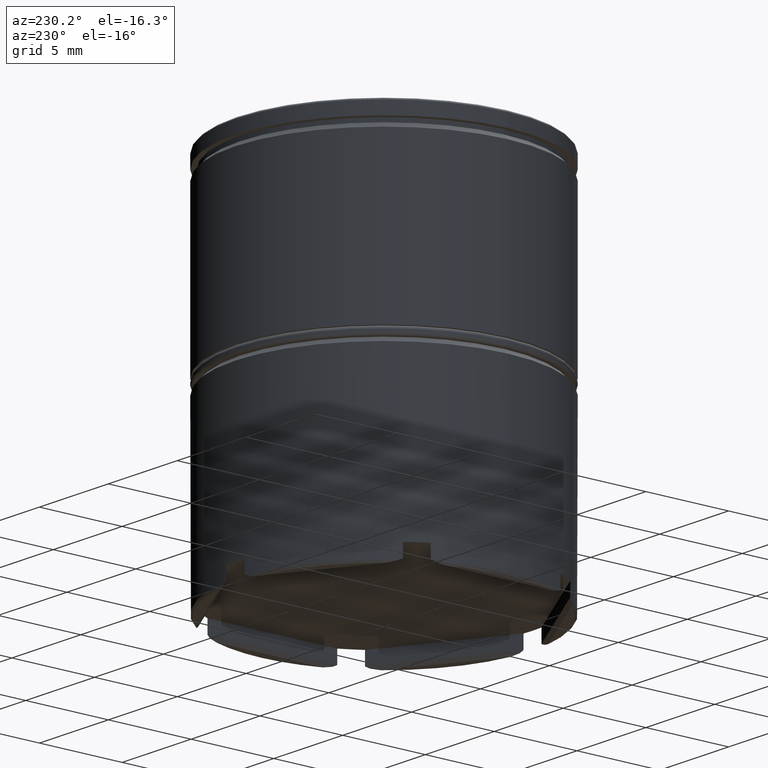
[diagram: clean part render]
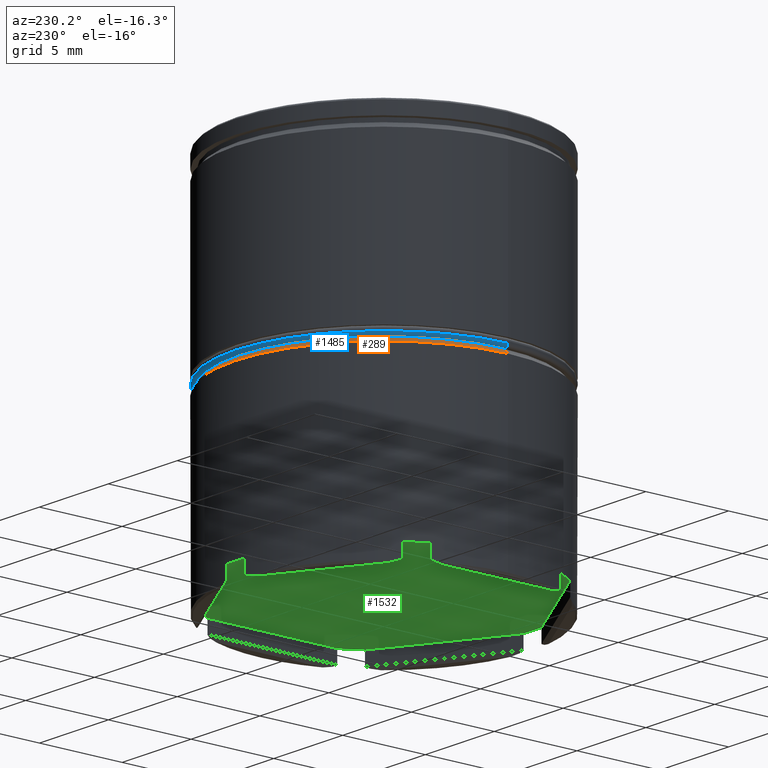
[diagram: same view with three faces highlighted in distinct colors, each labeled with its STEP entity id]
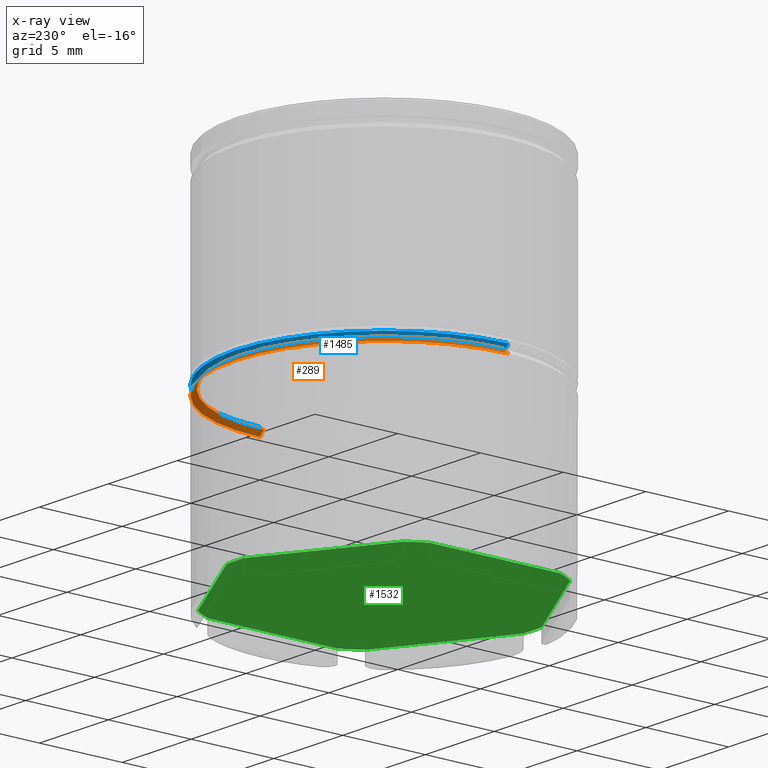
[diagram: x-ray of the same camera — body ghosted, the three highlighted faces saturated]
A machine part, auxiliary view with three faces highlighted in distinct colors.
The next image is the same camera in x-ray (body ghosted, the three faces saturated) — at least one of them is partly hidden behind the body in this view.
Their STEP definitions:

[orange] entity #289 — the highlighted conical surface has half-angle 45 deg.
#26 = VERTEX_POINT ( 'NONE', #1267 ) ;
#53 = DIRECTION ( 'NONE',  ( -0.7071067811865392461, 0.000000000000000000, -0.7071067811865556774 ) ) ;
#67 = ORIENTED_EDGE ( 'NONE', *, *, #1254, .F. ) ;
#109 = CONICAL_SURFACE ( 'NONE', #741, 8.700000000000002842, 0.7853981633974367327 ) ;
#146 = CARTESIAN_POINT ( 'NONE',  ( -8.699999999999999289, 1.065442715258197248E-15, -11.50000000000000000 ) ) ;
#176 = CIRCLE ( 'NONE', #1284, 9.000000000000000000 ) ;
#178 = CARTESIAN_POINT ( 'NONE',  ( 0.000000000000000000, 0.000000000000000000, -11.50000000000000000 ) ) ;
#237 = CARTESIAN_POINT ( 'NONE',  ( -9.000000000000000000, 1.102182119232617714E-15, -11.80000000000000249 ) ) ;
#238 = DIRECTION ( 'NONE',  ( 0.000000000000000000, 0.000000000000000000, -1.000000000000000000 ) ) ;
#265 = CARTESIAN_POINT ( 'NONE',  ( 0.000000000000000000, 0.000000000000000000, -11.80000000000000249 ) ) ;
#289 = ADVANCED_FACE ( 'NONE', ( #736 ), #109, .T. ) ;
#290 = EDGE_LOOP ( 'NONE', ( #737, #1484, #1568, #67 ) ) ;
#332 = LINE ( 'NONE', #704, #1534 ) ;
#346 = CARTESIAN_POINT ( 'NONE',  ( 0.000000000000000000, 0.000000000000000000, -11.50000000000000000 ) ) ;
#356 = DIRECTION ( 'NONE',  ( -1.000000000000000000, 0.000000000000000000, 0.000000000000000000 ) ) ;
#358 = VERTEX_POINT ( 'NONE', #1514 ) ;
#619 = DIRECTION ( 'NONE',  ( 0.000000000000000000, 0.000000000000000000, -1.000000000000000000 ) ) ;
#704 = CARTESIAN_POINT ( 'NONE',  ( 8.700000000000002842, 1.065442715258197643E-15, -11.50000000000000000 ) ) ;
#736 = FACE_OUTER_BOUND ( 'NONE', #290, .T. ) ;
#737 = ORIENTED_EDGE ( 'NONE', *, *, #895, .F. ) ;
#741 = AXIS2_PLACEMENT_3D ( 'NONE', #346, #619, #356 ) ;
#766 = DIRECTION ( 'NONE',  ( 1.000000000000000000, 0.000000000000000000, 0.000000000000000000 ) ) ;
#773 = CIRCLE ( 'NONE', #1060, 8.699999999999999289 ) ;
#803 = CARTESIAN_POINT ( 'NONE',  ( -8.700000000000002842, 0.000000000000000000, -11.50000000000000000 ) ) ;
#828 = VERTEX_POINT ( 'NONE', #146 ) ;
#895 = EDGE_CURVE ( 'NONE', #358, #828, #773, .T. ) ;
#1059 = EDGE_CURVE ( 'NONE', #358, #26, #332, .T. ) ;
#1060 = AXIS2_PLACEMENT_3D ( 'NONE', #178, #1302, #1436 ) ;
#1158 = VECTOR ( 'NONE', #53, 1000.000000000000114 ) ;
#1214 = DIRECTION ( 'NONE',  ( 0.7071067811865392461, 8.659560562354833018E-17, -0.7071067811865556774 ) ) ;
#1254 = EDGE_CURVE ( 'NONE', #828, #1622, #1421, .T. ) ;
#1267 = CARTESIAN_POINT ( 'NONE',  ( 9.000000000000000000, 0.000000000000000000, -11.80000000000000249 ) ) ;
#1284 = AXIS2_PLACEMENT_3D ( 'NONE', #265, #238, #766 ) ;
#1302 = DIRECTION ( 'NONE',  ( -0.000000000000000000, -0.000000000000000000, 1.000000000000000000 ) ) ;
#1421 = LINE ( 'NONE', #803, #1158 ) ;
#1436 = DIRECTION ( 'NONE',  ( 1.000000000000000000, 0.000000000000000000, 0.000000000000000000 ) ) ;
#1484 = ORIENTED_EDGE ( 'NONE', *, *, #1059, .T. ) ;
#1514 = CARTESIAN_POINT ( 'NONE',  ( 8.699999999999999289, 0.000000000000000000, -11.50000000000000000 ) ) ;
#1534 = VECTOR ( 'NONE', #1214, 1000.000000000000114 ) ;
#1558 = EDGE_CURVE ( 'NONE', #1622, #26, #176, .T. ) ;
#1568 = ORIENTED_EDGE ( 'NONE', *, *, #1558, .F. ) ;
#1622 = VERTEX_POINT ( 'NONE', #237 ) ;

[blue] entity #1485 — the highlighted toroidal blend (fillet) surface has major radius 8.8 mm and minor (blend) radius 0.2 mm.
#7 = CIRCLE ( 'NONE', #1611, 8.799999999999998934 ) ;
#52 = AXIS2_PLACEMENT_3D ( 'NONE', #655, #528, #1020 ) ;
#121 = EDGE_CURVE ( 'NONE', #1522, #932, #950, .T. ) ;
#151 = TOROIDAL_SURFACE ( 'NONE', #889, 8.799999999999998934, 0.2000000000000000111 ) ;
#153 = DIRECTION ( 'NONE',  ( 1.224646799147353207E-16, 1.000000000000000000, -0.000000000000000000 ) ) ;
#188 = AXIS2_PLACEMENT_3D ( 'NONE', #1166, #1064, #435 ) ;
#250 = CARTESIAN_POINT ( 'NONE',  ( 0.000000000000000000, 0.000000000000000000, -11.29999999999999716 ) ) ;
#283 = DIRECTION ( 'NONE',  ( 1.000000000000000000, 0.000000000000000000, 0.000000000000000000 ) ) ;
#409 = VERTEX_POINT ( 'NONE', #1147 ) ;
#435 = DIRECTION ( 'NONE',  ( 1.000000000000000000, 0.000000000000000000, 0.000000000000000000 ) ) ;
#528 = DIRECTION ( 'NONE',  ( 0.000000000000000000, -1.000000000000000000, 0.000000000000000000 ) ) ;
#534 = DIRECTION ( 'NONE',  ( 1.000000000000000000, 0.000000000000000000, 0.000000000000000000 ) ) ;
#566 = CIRCLE ( 'NONE', #52, 0.2000000000000005107 ) ;
#614 = AXIS2_PLACEMENT_3D ( 'NONE', #1087, #153, #1208 ) ;
#618 = CIRCLE ( 'NONE', #188, 9.000000000000000000 ) ;
#631 = CARTESIAN_POINT ( 'NONE',  ( 0.000000000000000000, 0.000000000000000000, -11.49999999999999822 ) ) ;
#646 = CARTESIAN_POINT ( 'NONE',  ( -8.799999999999998934, 1.089935651241144160E-15, -11.49999999999999822 ) ) ;
#655 = CARTESIAN_POINT ( 'NONE',  ( 8.799999999999998934, 0.000000000000000000, -11.29999999999999716 ) ) ;
#754 = CARTESIAN_POINT ( 'NONE',  ( 9.000000000000000000, 0.000000000000000000, -11.29999999999999716 ) ) ;
#758 = VERTEX_POINT ( 'NONE', #754 ) ;
#767 = ORIENTED_EDGE ( 'NONE', *, *, #801, .F. ) ;
#801 = EDGE_CURVE ( 'NONE', #1522, #409, #7, .T. ) ;
#868 = ORIENTED_EDGE ( 'NONE', *, *, #909, .F. ) ;
#889 = AXIS2_PLACEMENT_3D ( 'NONE', #250, #1008, #283 ) ;
#909 = EDGE_CURVE ( 'NONE', #758, #932, #618, .T. ) ;
#932 = VERTEX_POINT ( 'NONE', #1420 ) ;
#950 = CIRCLE ( 'NONE', #614, 0.2000000000000005107 ) ;
#963 = ORIENTED_EDGE ( 'NONE', *, *, #121, .T. ) ;
#969 = EDGE_LOOP ( 'NONE', ( #767, #963, #868, #1080 ) ) ;
#1008 = DIRECTION ( 'NONE',  ( 0.000000000000000000, 0.000000000000000000, 1.000000000000000000 ) ) ;
#1020 = DIRECTION ( 'NONE',  ( 0.000000000000000000, 0.000000000000000000, -1.000000000000000000 ) ) ;
#1064 = DIRECTION ( 'NONE',  ( 0.000000000000000000, 0.000000000000000000, 1.000000000000000000 ) ) ;
#1080 = ORIENTED_EDGE ( 'NONE', *, *, #1174, .F. ) ;
#1087 = CARTESIAN_POINT ( 'NONE',  ( -8.799999999999998934, 1.077689183249670605E-15, -11.29999999999999716 ) ) ;
#1147 = CARTESIAN_POINT ( 'NONE',  ( 8.799999999999998934, 0.000000000000000000, -11.49999999999999822 ) ) ;
#1150 = DIRECTION ( 'NONE',  ( -0.000000000000000000, -0.000000000000000000, -1.000000000000000000 ) ) ;
#1166 = CARTESIAN_POINT ( 'NONE',  ( 0.000000000000000000, 0.000000000000000000, -11.29999999999999716 ) ) ;
#1174 = EDGE_CURVE ( 'NONE', #409, #758, #566, .T. ) ;
#1208 = DIRECTION ( 'NONE',  ( -1.000000000000000000, 1.224646799147353207E-16, 0.000000000000000000 ) ) ;
#1420 = CARTESIAN_POINT ( 'NONE',  ( -9.000000000000000000, 1.102182119232617517E-15, -11.29999999999999716 ) ) ;
#1485 = ADVANCED_FACE ( 'NONE', ( #1627 ), #151, .T. ) ;
#1522 = VERTEX_POINT ( 'NONE', #646 ) ;
#1611 = AXIS2_PLACEMENT_3D ( 'NONE', #631, #1150, #534 ) ;
#1627 = FACE_OUTER_BOUND ( 'NONE', #969, .T. ) ;

[green] entity #1532 — the highlighted planar face has unit normal (0, 0, -1).
#6 = EDGE_LOOP ( 'NONE', ( #1311, #1591, #867, #606, #605, #611, #1517, #512, #1102, #1260, #738, #469 ) ) ;
#13 = LINE ( 'NONE', #513, #70 ) ;
#24 = DIRECTION ( 'NONE',  ( 0.8660254037844385966, -0.5000000000000001110, 0.000000000000000000 ) ) ;
#43 = DIRECTION ( 'NONE',  ( -1.000000000000000000, 8.881784197001252323E-15, 0.000000000000000000 ) ) ;
#54 = CARTESIAN_POINT ( 'NONE',  ( -0.6525745041281705294, -8.976310295247255766, -21.50000000000000000 ) ) ;
#70 = VECTOR ( 'NONE', #997, 1000.000000000000227 ) ;
#93 = VERTEX_POINT ( 'NONE', #426 ) ;
#101 = EDGE_CURVE ( 'NONE', #1460, #1282, #282, .T. ) ;
#125 = CARTESIAN_POINT ( 'NONE',  ( -8.100000000000003197, 4.676537180435969887, -21.50000000000000000 ) ) ;
#129 = PLANE ( 'NONE',  #1109 ) ;
#150 = AXIS2_PLACEMENT_3D ( 'NONE', #674, #294, #555 ) ;
#198 = VERTEX_POINT ( 'NONE', #841 ) ;
#224 = EDGE_CURVE ( 'NONE', #946, #487, #859, .T. ) ;
#262 = VERTEX_POINT ( 'NONE', #992 ) ;
#275 = AXIS2_PLACEMENT_3D ( 'NONE', #293, #316, #813 ) ;
#277 = DIRECTION ( 'NONE',  ( -0.000000000000000000, -0.000000000000000000, 1.000000000000000000 ) ) ;
#282 = LINE ( 'NONE', #784, #1316 ) ;
#293 = CARTESIAN_POINT ( 'NONE',  ( 0.000000000000000000, 0.000000000000000000, -21.50000000000000000 ) ) ;
#294 = DIRECTION ( 'NONE',  ( -0.000000000000000000, -0.000000000000000000, 1.000000000000000000 ) ) ;
#316 = DIRECTION ( 'NONE',  ( -0.000000000000000000, -0.000000000000000000, 1.000000000000000000 ) ) ;
#326 = VECTOR ( 'NONE', #1548, 1000.000000000000114 ) ;
#329 = EDGE_CURVE ( 'NONE', #198, #935, #1132, .T. ) ;
#354 = AXIS2_PLACEMENT_3D ( 'NONE', #377, #277, #890 ) ;
#377 = CARTESIAN_POINT ( 'NONE',  ( 0.000000000000000000, 0.000000000000000000, -21.50000000000000000 ) ) ;
#402 = EDGE_CURVE ( 'NONE', #1118, #1306, #405, .T. ) ;
#405 = LINE ( 'NONE', #1520, #952 ) ;
#408 = CIRCLE ( 'NONE', #846, 9.000000000000000000 ) ;
#426 = CARTESIAN_POINT ( 'NONE',  ( 0.6525745041281688641, -8.976310295247257542, -21.50000000000000000 ) ) ;
#452 = CARTESIAN_POINT ( 'NONE',  ( 8.100000000000001421, -4.676537180435970775, -21.50000000000000000 ) ) ;
#461 = AXIS2_PLACEMENT_3D ( 'NONE', #475, #864, #1470 ) ;
#469 = ORIENTED_EDGE ( 'NONE', *, *, #960, .F. ) ;
#475 = CARTESIAN_POINT ( 'NONE',  ( 0.000000000000000000, 0.000000000000000000, -21.50000000000000000 ) ) ;
#487 = VERTEX_POINT ( 'NONE', #1422 ) ;
#512 = ORIENTED_EDGE ( 'NONE', *, *, #931, .F. ) ;
#513 = CARTESIAN_POINT ( 'NONE',  ( -2.599418758191857609E-15, -9.353074360871939774, -21.50000000000000000 ) ) ;
#525 = CARTESIAN_POINT ( 'NONE',  ( 0.000000000000000000, 0.000000000000000000, -21.50000000000000000 ) ) ;
#526 = CARTESIAN_POINT ( 'NONE',  ( -8.100000000000003197, -3.923009049186599206, -21.50000000000000000 ) ) ;
#555 = DIRECTION ( 'NONE',  ( -1.000000000000000000, 0.000000000000000000, 0.000000000000000000 ) ) ;
#577 = VERTEX_POINT ( 'NONE', #54 ) ;
#605 = ORIENTED_EDGE ( 'NONE', *, *, #402, .T. ) ;
#606 = ORIENTED_EDGE ( 'NONE', *, *, #673, .F. ) ;
#609 = CARTESIAN_POINT ( 'NONE',  ( 7.447425495871832446, -5.053301246060657448, -21.50000000000000000 ) ) ;
#611 = ORIENTED_EDGE ( 'NONE', *, *, #791, .F. ) ;
#668 = CARTESIAN_POINT ( 'NONE',  ( 0.000000000000000000, 0.000000000000000000, -21.50000000000000000 ) ) ;
#673 = EDGE_CURVE ( 'NONE', #1118, #935, #954, .T. ) ;
#674 = CARTESIAN_POINT ( 'NONE',  ( 0.000000000000000000, 0.000000000000000000, -21.50000000000000000 ) ) ;
#688 = CARTESIAN_POINT ( 'NONE',  ( 7.447425495871836887, 5.053301246060648566, -21.50000000000000000 ) ) ;
#709 = VECTOR ( 'NONE', #726, 1000.000000000000000 ) ;
#712 = CIRCLE ( 'NONE', #354, 9.000000000000000000 ) ;
#722 = VERTEX_POINT ( 'NONE', #609 ) ;
#726 = DIRECTION ( 'NONE',  ( 0.000000000000000000, -1.000000000000000000, 0.000000000000000000 ) ) ;
#730 = DIRECTION ( 'NONE',  ( 0.000000000000000000, 0.000000000000000000, -1.000000000000000000 ) ) ;
#738 = ORIENTED_EDGE ( 'NONE', *, *, #1521, .T. ) ;
#762 = DIRECTION ( 'NONE',  ( -0.000000000000000000, -0.000000000000000000, 1.000000000000000000 ) ) ;
#768 = EDGE_CURVE ( 'NONE', #577, #93, #408, .T. ) ;
#769 = VECTOR ( 'NONE', #1415, 1000.000000000000114 ) ;
#784 = CARTESIAN_POINT ( 'NONE',  ( -8.100000000000003197, -4.676537180435969887, -21.50000000000000000 ) ) ;
#791 = EDGE_CURVE ( 'NONE', #946, #1306, #712, .T. ) ;
#794 = CARTESIAN_POINT ( 'NONE',  ( -0.6525745041281640901, 8.976310295247255766, -21.50000000000000000 ) ) ;
#813 = DIRECTION ( 'NONE',  ( -1.000000000000000000, 0.000000000000000000, 0.000000000000000000 ) ) ;
#841 = CARTESIAN_POINT ( 'NONE',  ( -7.447425495871833334, 5.053301246060654783, -21.50000000000000000 ) ) ;
#846 = AXIS2_PLACEMENT_3D ( 'NONE', #1512, #762, #999 ) ;
#859 = LINE ( 'NONE', #975, #709 ) ;
#864 = DIRECTION ( 'NONE',  ( -0.000000000000000000, -0.000000000000000000, 1.000000000000000000 ) ) ;
#867 = ORIENTED_EDGE ( 'NONE', *, *, #329, .T. ) ;
#890 = DIRECTION ( 'NONE',  ( -1.000000000000000000, 0.000000000000000000, 0.000000000000000000 ) ) ;
#931 = EDGE_CURVE ( 'NONE', #722, #487, #1555, .T. ) ;
#935 = VERTEX_POINT ( 'NONE', #794 ) ;
#946 = VERTEX_POINT ( 'NONE', #1055 ) ;
#952 = VECTOR ( 'NONE', #24, 1000.000000000000000 ) ;
#954 = CIRCLE ( 'NONE', #461, 9.000000000000000000 ) ;
#960 = EDGE_CURVE ( 'NONE', #1460, #262, #1406, .T. ) ;
#975 = CARTESIAN_POINT ( 'NONE',  ( 8.100000000000001421, 4.676537180435967223, -21.50000000000000000 ) ) ;
#988 = EDGE_CURVE ( 'NONE', #722, #93, #1073, .T. ) ;
#989 = FACE_OUTER_BOUND ( 'NONE', #6, .T. ) ;
#992 = CARTESIAN_POINT ( 'NONE',  ( -7.447425495871832446, -5.053301246060655671, -21.50000000000000000 ) ) ;
#997 = DIRECTION ( 'NONE',  ( -0.8660254037844385966, 0.5000000000000000000, 0.000000000000000000 ) ) ;
#999 = DIRECTION ( 'NONE',  ( -1.000000000000000000, 0.000000000000000000, 0.000000000000000000 ) ) ;
#1050 = CIRCLE ( 'NONE', #150, 9.000000000000000000 ) ;
#1055 = CARTESIAN_POINT ( 'NONE',  ( 8.100000000000001421, 3.923009049186602759, -21.50000000000000000 ) ) ;
#1073 = LINE ( 'NONE', #452, #326 ) ;
#1102 = ORIENTED_EDGE ( 'NONE', *, *, #988, .T. ) ;
#1109 = AXIS2_PLACEMENT_3D ( 'NONE', #525, #730, #1499 ) ;
#1118 = VERTEX_POINT ( 'NONE', #1278 ) ;
#1121 = AXIS2_PLACEMENT_3D ( 'NONE', #668, #1563, #43 ) ;
#1132 = LINE ( 'NONE', #125, #769 ) ;
#1233 = EDGE_CURVE ( 'NONE', #198, #1282, #1050, .T. ) ;
#1260 = ORIENTED_EDGE ( 'NONE', *, *, #768, .F. ) ;
#1278 = CARTESIAN_POINT ( 'NONE',  ( 0.6525745041281636460, 8.976310295247255766, -21.50000000000000000 ) ) ;
#1282 = VERTEX_POINT ( 'NONE', #1286 ) ;
#1286 = CARTESIAN_POINT ( 'NONE',  ( -8.100000000000003197, 3.923009049186599206, -21.50000000000000000 ) ) ;
#1306 = VERTEX_POINT ( 'NONE', #688 ) ;
#1311 = ORIENTED_EDGE ( 'NONE', *, *, #101, .T. ) ;
#1316 = VECTOR ( 'NONE', #1586, 1000.000000000000000 ) ;
#1406 = CIRCLE ( 'NONE', #275, 9.000000000000000000 ) ;
#1415 = DIRECTION ( 'NONE',  ( 0.8660254037844387076, 0.4999999999999997780, 0.000000000000000000 ) ) ;
#1422 = CARTESIAN_POINT ( 'NONE',  ( 8.100000000000001421, -3.923009049186602759, -21.50000000000000000 ) ) ;
#1460 = VERTEX_POINT ( 'NONE', #526 ) ;
#1470 = DIRECTION ( 'NONE',  ( -1.000000000000000000, 1.421085471520200372E-14, 0.000000000000000000 ) ) ;
#1499 = DIRECTION ( 'NONE',  ( -1.000000000000000000, 0.000000000000000000, -0.000000000000000000 ) ) ;
#1512 = CARTESIAN_POINT ( 'NONE',  ( 0.000000000000000000, 0.000000000000000000, -21.50000000000000000 ) ) ;
#1517 = ORIENTED_EDGE ( 'NONE', *, *, #224, .T. ) ;
#1520 = CARTESIAN_POINT ( 'NONE',  ( 0.000000000000000000, 9.353074360871937998, -21.50000000000000000 ) ) ;
#1521 = EDGE_CURVE ( 'NONE', #577, #262, #13, .T. ) ;
#1532 = ADVANCED_FACE ( 'NONE', ( #989 ), #129, .T. ) ;
#1548 = DIRECTION ( 'NONE',  ( -0.8660254037844387076, -0.4999999999999998890, 0.000000000000000000 ) ) ;
#1555 = CIRCLE ( 'NONE', #1121, 9.000000000000000000 ) ;
#1563 = DIRECTION ( 'NONE',  ( -0.000000000000000000, -0.000000000000000000, 1.000000000000000000 ) ) ;
#1586 = DIRECTION ( 'NONE',  ( 0.000000000000000000, 1.000000000000000000, 0.000000000000000000 ) ) ;
#1591 = ORIENTED_EDGE ( 'NONE', *, *, #1233, .F. ) ;